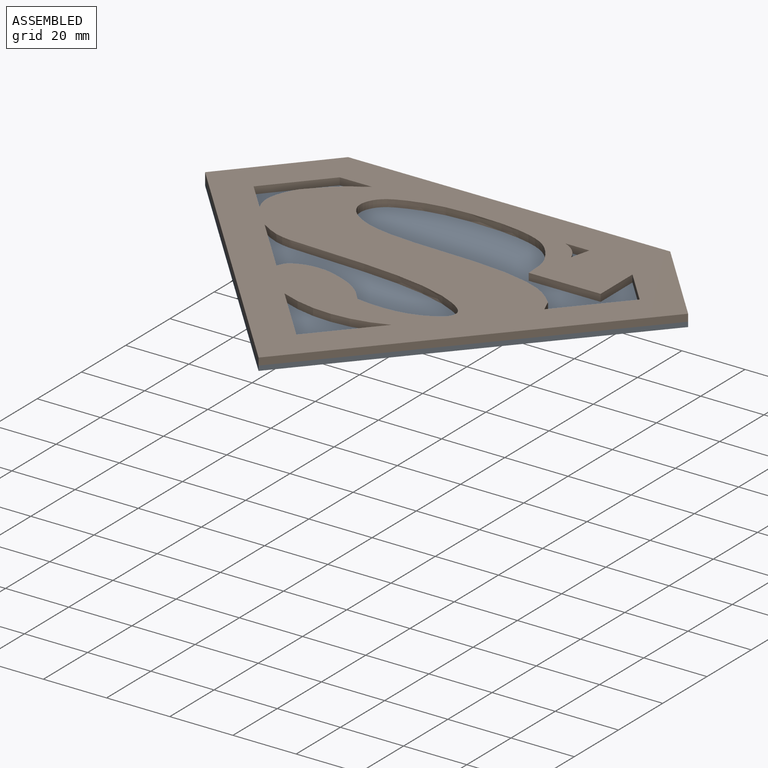
[diagram: assembled view]
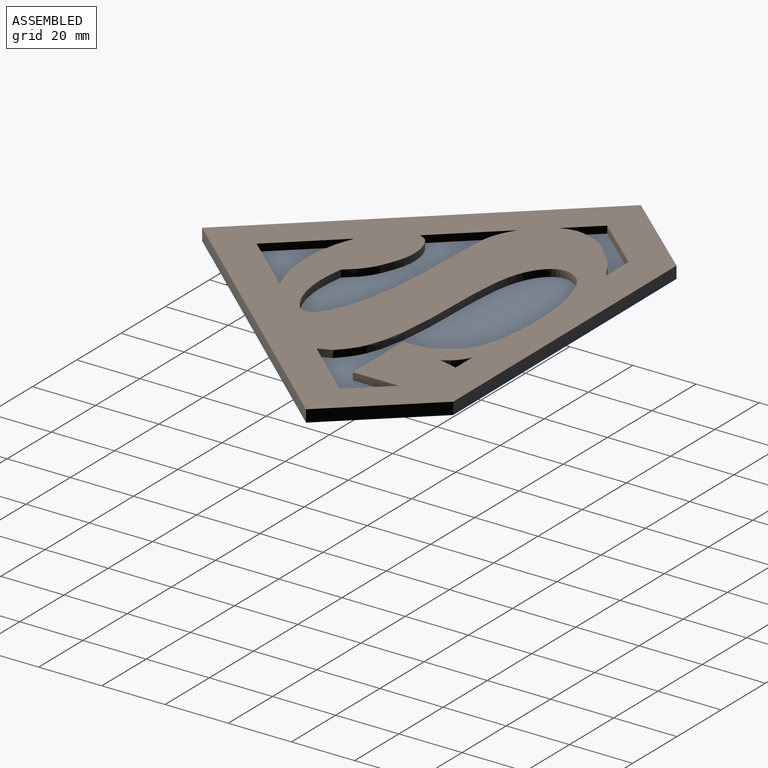
[diagram: assembled view, second angle]
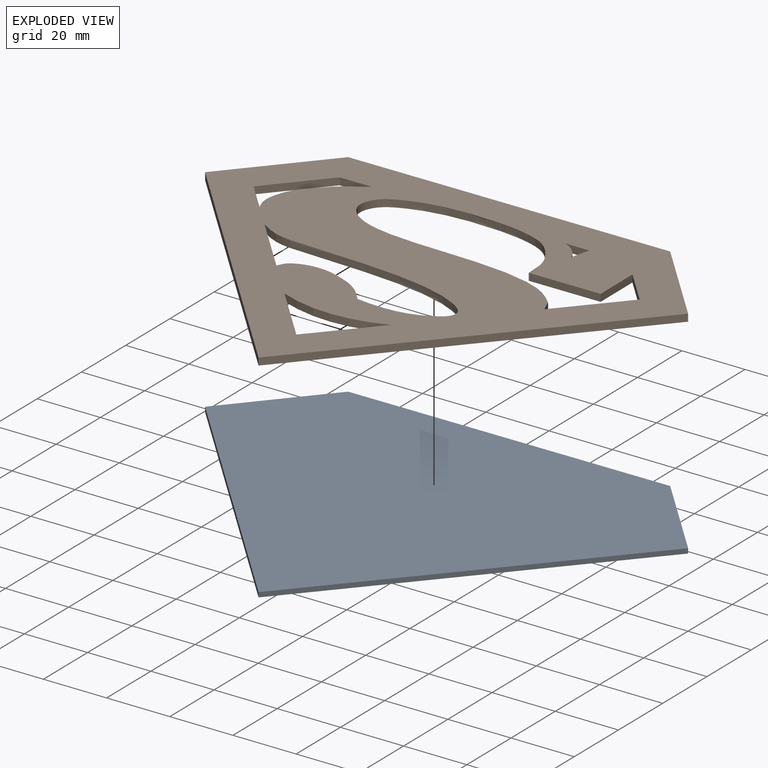
[diagram: exploded view]
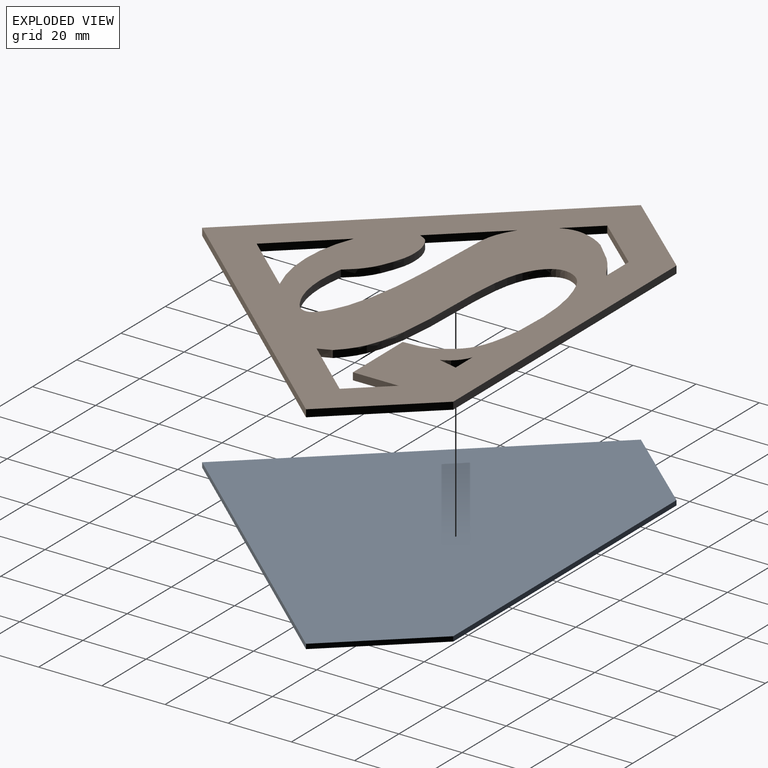
[diagram: exploded view, second angle]
ASSEMBLY  parts=2 mates=2
PART A: 7 faces, bbox 152.4x114.3x1.5 mm
  f0: plane 28.73x25.58mm, normal (0.75,0.67,0), area 58.6mm2, adj f1,f4,f5,f6
  f1: plane 101.6x1.52mm, normal (0,1,0), area 154.8mm2, adj f0,f2,f5,f6
  f2: plane 28.73x25.22mm, normal (-0.75,0.66,0), area 58.3mm2, adj f1,f3,f5,f6
  f3: plane 85.57x76.2mm, normal (-0.75,-0.67,0), area 174.6mm2, adj f2,f4,f5,f6
  f4: plane 85.57x76.2mm, normal (0.75,-0.67,0), area 174.6mm2, adj f0,f3,f5,f6
  f5: plane 152.4x114.3mm, normal (0,0,1), area 10169.1mm2, adj f0,f1,f2,f3,f4
  f6: plane 152.4x114.3mm, normal (0,0,-1), area 10169.1mm2, adj f0,f1,f2,f3,f4
PART B: 25 faces, bbox 152.4x114.3x2.3 mm
  f0: plane 28.73x25.58mm, normal (0.75,0.67,0), area 87.9mm2, adj f1,f22,f23,f24
  f1: plane 101.6x2.29mm, normal (0,1,0), area 232.3mm2, adj f0,f2,f23,f24
  f2: plane 28.73x25.22mm, normal (-0.75,0.66,0), area 87.4mm2, adj f1,f3,f23,f24
  f3: plane 85.57x76.2mm, normal (-0.75,-0.67,0), area 261.9mm2, adj f2,f22,f23,f24
  f4: plane 18.97x16.89mm, normal (-0.75,0.67,0), area 58.1mm2, adj f5,f17,f23,f24
  f5: plane 18.97x16.89mm, normal (0.75,0.67,0), area 58.1mm2, adj f4,f17,f23,f24
  f6: plane 11.54x10.28mm, normal (-0.75,-0.67,0), area 35.3mm2, adj f7,f18,f23,f24
  f7: plane 18.97x16.89mm, normal (-0.75,0.67,0), area 58.1mm2, adj f6,f8,f23,f24
  f8: extruded ~75.64x37.27mm, area 372mm2, adj f7,f9,f23,f24
  f9: plane 22.67x2.29mm, normal (0,-1,0), area 51.8mm2, adj f8,f18,f23,f24
  f10: plane 18.97x16.89mm, normal (0.75,0.67,0), area 58.1mm2, adj f11,f19,f23,f24
  f11: extruded ~72.01x24.54mm, area 241.1mm2, adj f10,f19,f23,f24
  f12: plane 9.48x8.45mm, normal (0.75,0.67,0), area 29mm2, adj f13,f20,f23,f24
  f13: plane 17.3x15.18mm, normal (0.75,-0.66,0), area 52.6mm2, adj f12,f14,f23,f24
  f14: plane 10.16x2.29mm, normal (0,-1,0), area 23.2mm2, adj f13,f20,f23,f24
  f15: plane 6.1x2.29mm, normal (-0.97,0.24,0), area 14.4mm2, adj f16,f21,f23,f24
  f16: cylinder r=10.16mm len=6.12mm, axis (0,0,-1), area 20.4mm2, adj f15,f21,f23,f24
  f17: cylinder r=43.18mm len=33.78mm, axis (0,0,-1), area 79.3mm2, adj f4,f5,f23,f24
  f18: plane 14.46x2.29mm, normal (1,0,0), area 33.1mm2, adj f6,f9,f23,f24
  f19: extruded ~28.98x9.96mm, area 78.2mm2, adj f10,f11,f23,f24
  f20: extruded ~26.78x18.19mm, area 79.6mm2, adj f12,f14,f23,f24
  f21: plane 7.65x2.29mm, normal (0,-1,0), area 17.5mm2, adj f15,f16,f23,f24
  f22: plane 85.57x76.2mm, normal (0.75,-0.67,0), area 261.9mm2, adj f0,f3,f23,f24
  f23: plane 152.4x114.3mm, normal (0,0,1), area 7451.8mm2, adj f0,f1,f2,f3,f4,f5,f6,f7
  f24: plane 152.4x114.3mm, normal (0,0,-1), area 7451.8mm2, adj f0,f1,f2,f3,f4,f5,f6,f7
PLACE A rot(axis=(0,0,1),0.3deg) t=(0.21,0.65,3.56)mm
PLACE B rot(axis=(0,0,1),0.3deg) t=(0.21,0.65,5.08)mm fixed
MATE planar B.f24 <-> A.f5  axis (0,0,-1) through (-40.66,50.74,5.08)mm
MATE planar B.f22 <-> A.f4  axis (0.75,-0.66,0) through (38.35,-8.98,6.22)mm
